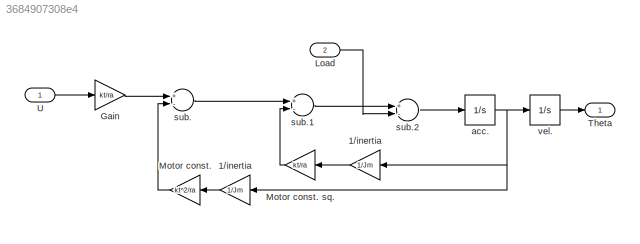
MODEL slx_3684907308e4
KIND model
CONFIG AbsTol = auto
CONFIG FixedStep = auto
CONFIG MaxStep = auto
CONFIG MinStep = auto
CONFIG RelTol = 1e-3
CONFIG SampleTimeConstraint = Unconstrained
CONFIG Solver = ode45
CONFIG SolverMode = Auto
CONFIG SolverName = ode45
CONFIG StartTime = 0.0
CONFIG StopTime = 10.0
BLOCK [Gain] 1//inertia
  Gain = 1/Jm
  OutDataTypeStr = Inherit: Inherit via internal rule
  ParamDataTypeStr = Inherit: Inherit via internal rule
  SaturateOnIntegerOverflow = off
BLOCK [Gain] 1//inertia 
  Gain = 1/Jm
  OutDataTypeStr = Inherit: Inherit via internal rule
  ParamDataTypeStr = Inherit: Inherit via internal rule
  SaturateOnIntegerOverflow = off
BLOCK [Gain] Gain
  Gain = kt/ra
  OutDataTypeStr = Inherit: Inherit via internal rule
  ParamDataTypeStr = Inherit: Inherit via internal rule
  SaturateOnIntegerOverflow = off
BLOCK [Inport] Load
  IconDisplay = Port number
  Port = 2
BLOCK [Gain] Motor const.
  Gain = kt^2/ra
  OutDataTypeStr = Inherit: Inherit via internal rule
  ParamDataTypeStr = Inherit: Inherit via internal rule
  SaturateOnIntegerOverflow = off
BLOCK [Gain] Motor const. sq.
  Gain = kt/ra
  OutDataTypeStr = Inherit: Inherit via internal rule
  ParamDataTypeStr = Inherit: Inherit via internal rule
  SaturateOnIntegerOverflow = off
BLOCK [Outport] Theta
  IconDisplay = Port number
BLOCK [Inport] U
  IconDisplay = Port number
BLOCK [Integrator] acc.
  Ports = [1, 1]
BLOCK [Sum] sub.
  InputSameDT = off
  Inputs = +-
  OutDataTypeStr = Inherit: Inherit via internal rule
  Ports = [2, 1]
  SaturateOnIntegerOverflow = off
BLOCK [Sum] sub.1
  InputSameDT = off
  Inputs = +-
  OutDataTypeStr = Inherit: Inherit via internal rule
  Ports = [2, 1]
  SaturateOnIntegerOverflow = off
BLOCK [Sum] sub.2
  InputSameDT = off
  Inputs = +-
  OutDataTypeStr = Inherit: Inherit via internal rule
  Ports = [2, 1]
  SaturateOnIntegerOverflow = off
BLOCK [Integrator] vel.
  Ports = [1, 1]
LINE 1//inertia :1 -> Motor const. sq.:1
LINE 1//inertia:1 -> Motor const.:1
LINE Gain:1 -> sub.:1
LINE Load:1 -> sub.2:2
LINE Motor const. sq.:1 -> sub.1:2
LINE Motor const.:1 -> sub.:2
LINE U:1 -> Gain:1
NET acc.:1 -> 1//inertia :1, 1//inertia:1, vel.:1
LINE sub.1:1 -> sub.2:1
LINE sub.2:1 -> acc.:1
LINE sub.:1 -> sub.1:1
LINE vel.:1 -> Theta:1
note: NET lines group one-source signal fan-out (src -> all destinations, sorted); 1:1 wires keep LINE
